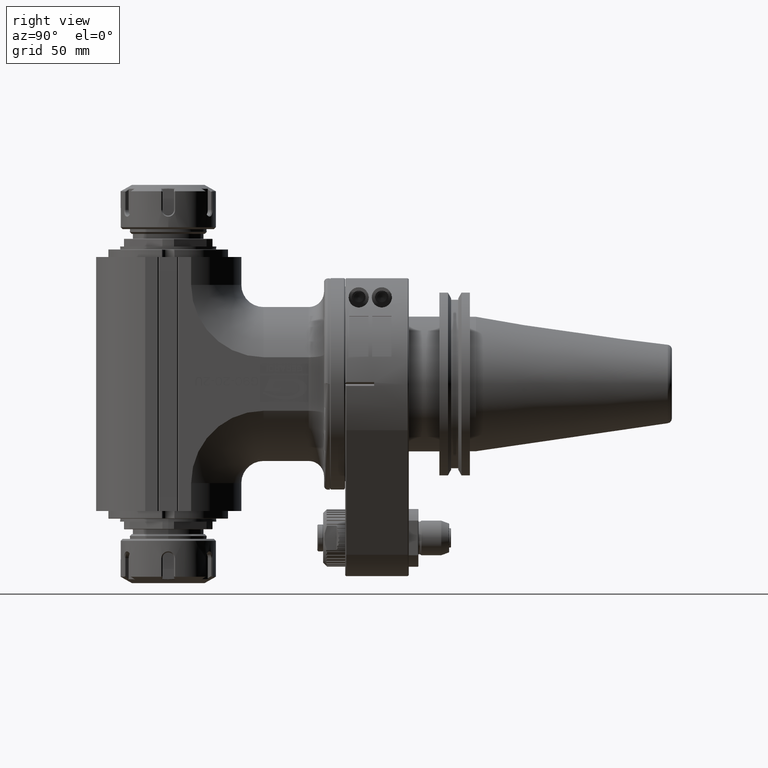
[diagram: clean part render]
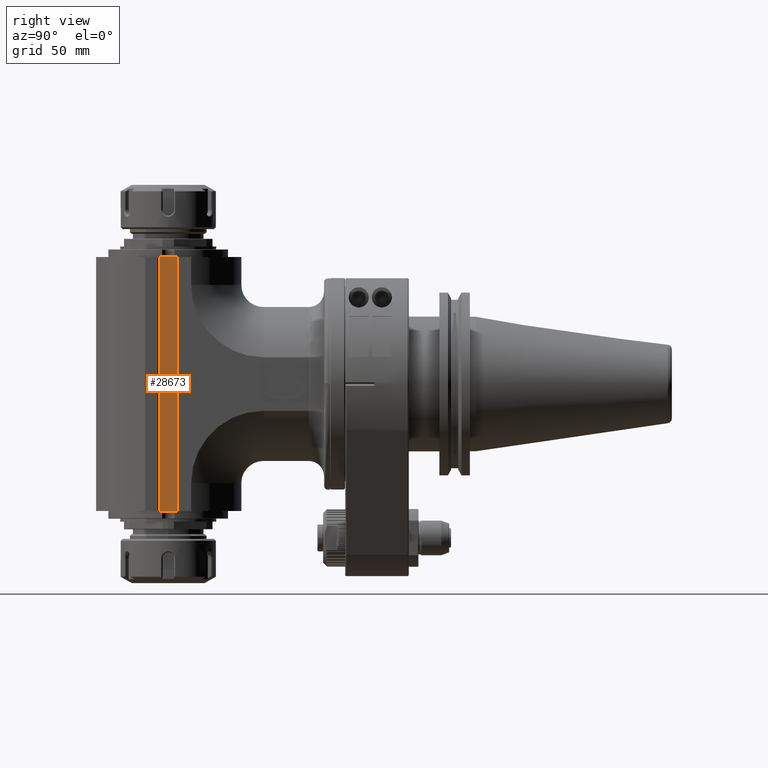
[diagram: same view with one face highlighted and labeled with its STEP entity id]
A machine part, right view. The second image highlights one B-rep face of the part: STEP entity #28673.
In plain terms, the highlighted planar face has unit normal (1, 0, -0).
Its self-contained STEP definition (entity closure, byte-faithful):
#4095=FACE_OUTER_BOUND('',#5713,.T.);
#5713=EDGE_LOOP('',(#21823,#21824,#21825,#21826));
#7788=LINE('',#44271,#10330);
#7792=LINE('',#44281,#10334);
#7794=LINE('',#44285,#10336);
#7857=LINE('',#44815,#10399);
#10330=VECTOR('',#35094,9.2);
#10334=VECTOR('',#35104,132.);
#10336=VECTOR('',#35108,9.2);
#10399=VECTOR('',#35405,132.);
#12966=VERTEX_POINT('',#44268);
#12967=VERTEX_POINT('',#44270);
#12970=VERTEX_POINT('',#44280);
#12971=VERTEX_POINT('',#44284);
#16127=EDGE_CURVE('',#12967,#12966,#7788,.T.);
#16132=EDGE_CURVE('',#12970,#12967,#7792,.T.);
#16134=EDGE_CURVE('',#12970,#12971,#7794,.T.);
#16267=EDGE_CURVE('',#12971,#12966,#7857,.T.);
#21823=ORIENTED_EDGE('',*,*,#16132,.T.);
#21824=ORIENTED_EDGE('',*,*,#16127,.T.);
#21825=ORIENTED_EDGE('',*,*,#16267,.F.);
#21826=ORIENTED_EDGE('',*,*,#16134,.F.);
#27532=PLANE('',#30837);
#28673=ADVANCED_FACE('',(#4095),#27532,.T.);
#30837=AXIS2_PLACEMENT_3D('',#44816,#35406,#35407);
#35094=DIRECTION('',(0.,-1.,0.));
#35104=DIRECTION('',(0.,0.,1.));
#35108=DIRECTION('',(0.,-1.,0.));
#35405=DIRECTION('',(0.,0.,1.));
#35406=DIRECTION('center_axis',(1.,0.,0.));
#35407=DIRECTION('ref_axis',(0.,-1.,0.));
#44268=CARTESIAN_POINT('',(37.4,-4.6,66.));
#44270=CARTESIAN_POINT('',(37.4,4.6,66.));
#44271=CARTESIAN_POINT('',(37.4,4.6,66.));
#44280=CARTESIAN_POINT('',(37.4,4.6,-66.));
#44281=CARTESIAN_POINT('',(37.4,4.6,-66.));
#44284=CARTESIAN_POINT('',(37.4,-4.6,-66.));
#44285=CARTESIAN_POINT('',(37.4,4.6,-66.));
#44815=CARTESIAN_POINT('',(37.4,-4.6,-66.));
#44816=CARTESIAN_POINT('Origin',(37.4,4.6,-66.));